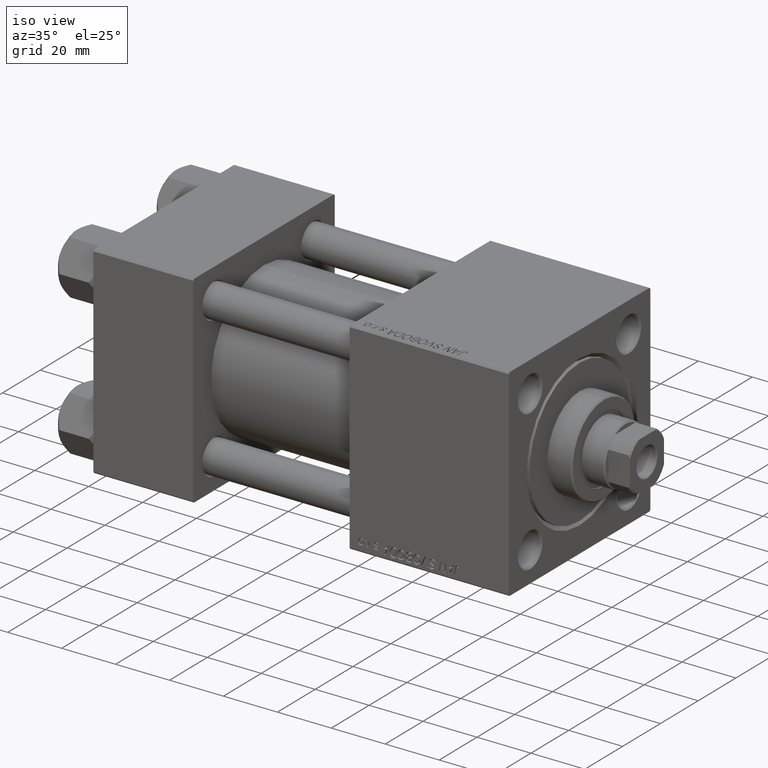
[diagram: clean part render]
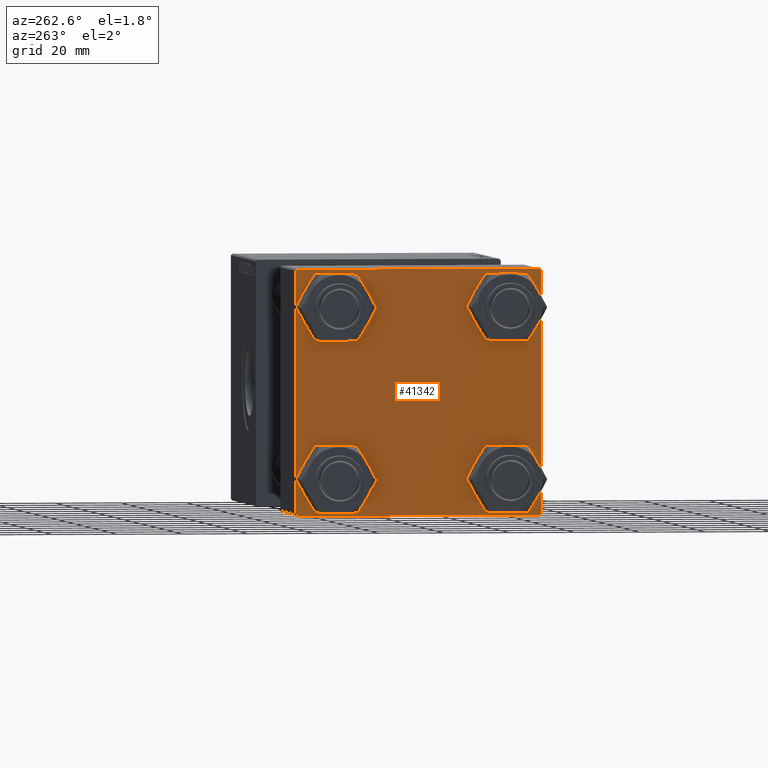
[diagram: tour spotlight — one face highlighted and labeled with its STEP entity id]
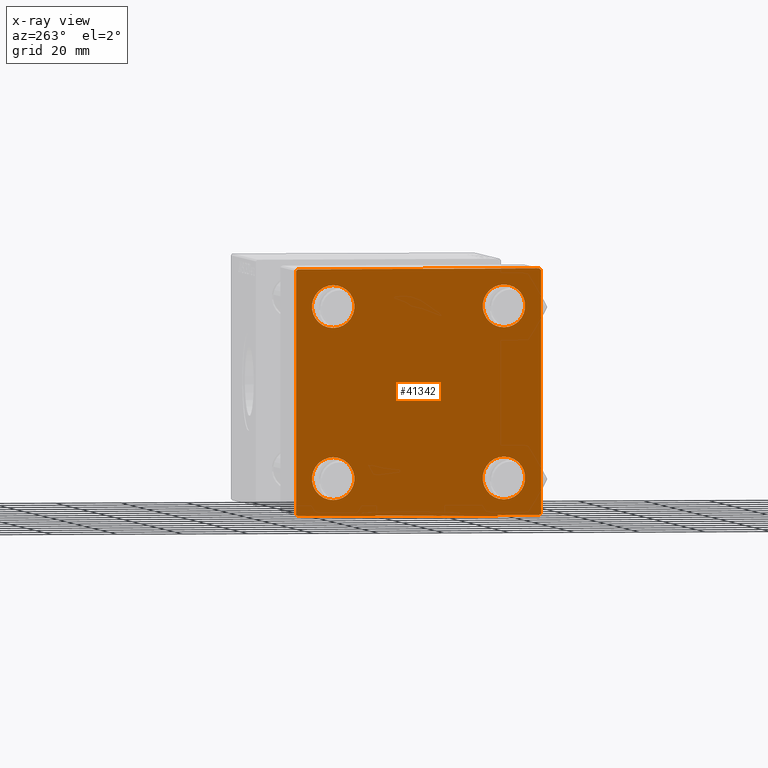
[diagram: x-ray of the same camera — body ghosted, this tour face saturated]
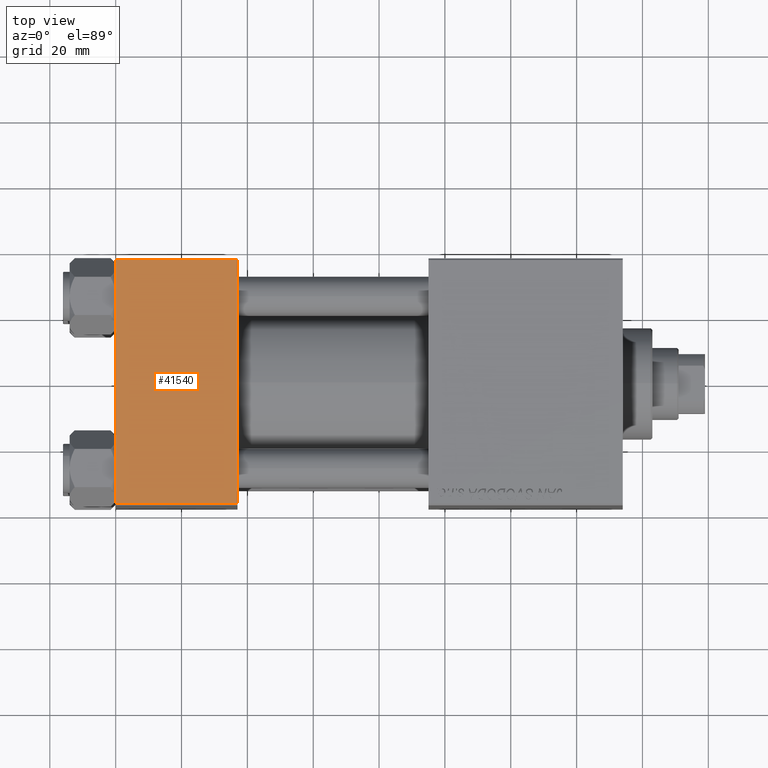
[diagram: tour spotlight — one face highlighted and labeled with its STEP entity id]
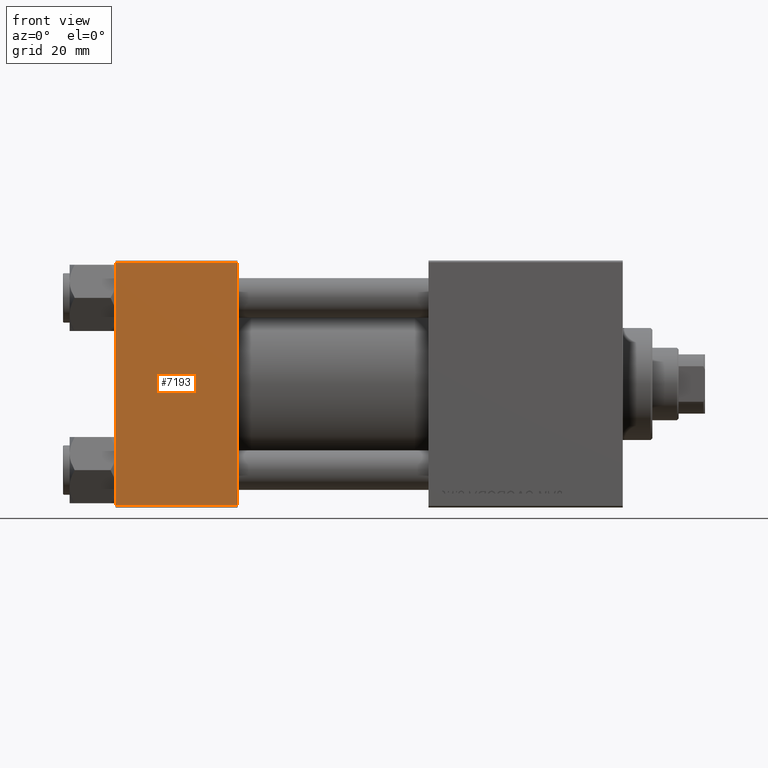
[diagram: tour spotlight — one face highlighted and labeled with its STEP entity id]
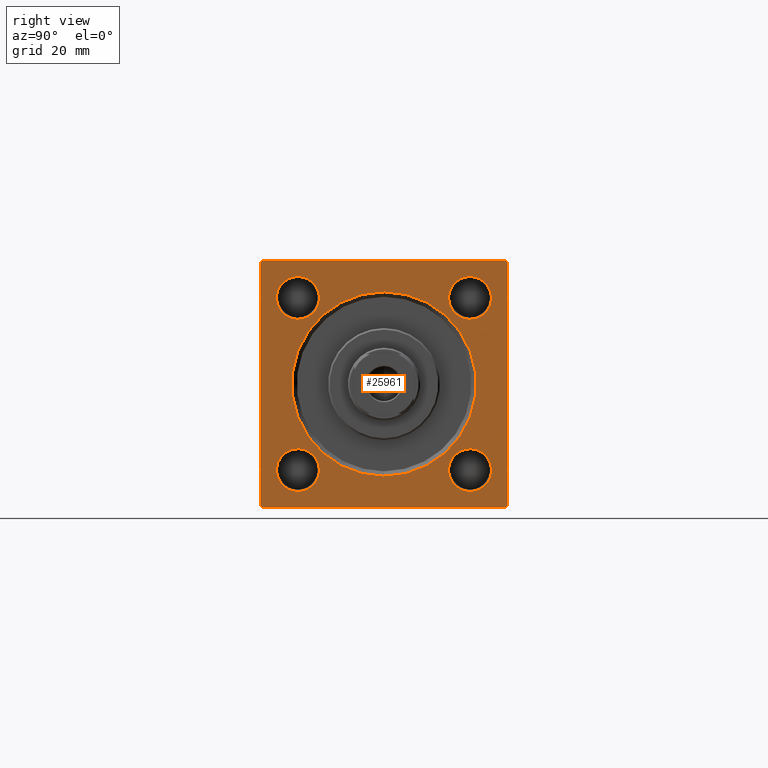
[diagram: tour spotlight — one face highlighted and labeled with its STEP entity id]
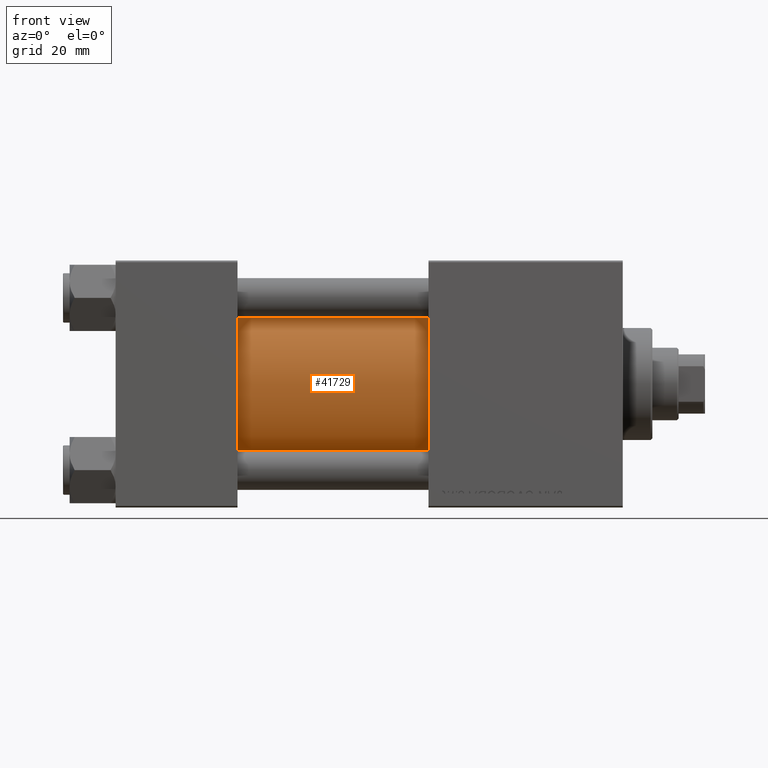
[diagram: tour spotlight — one face highlighted and labeled with its STEP entity id]
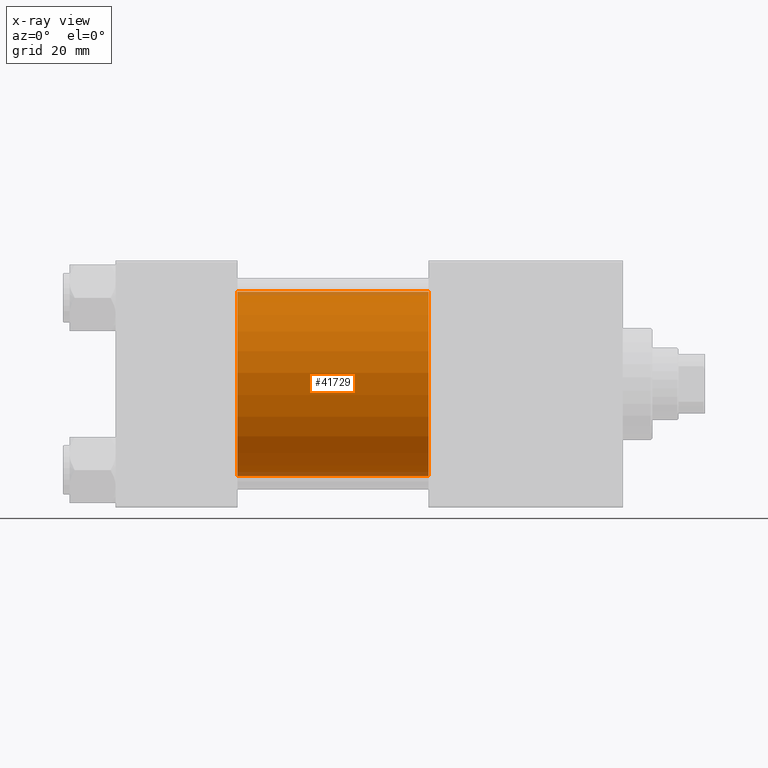
[diagram: x-ray of the same camera — body ghosted, this tour face saturated]
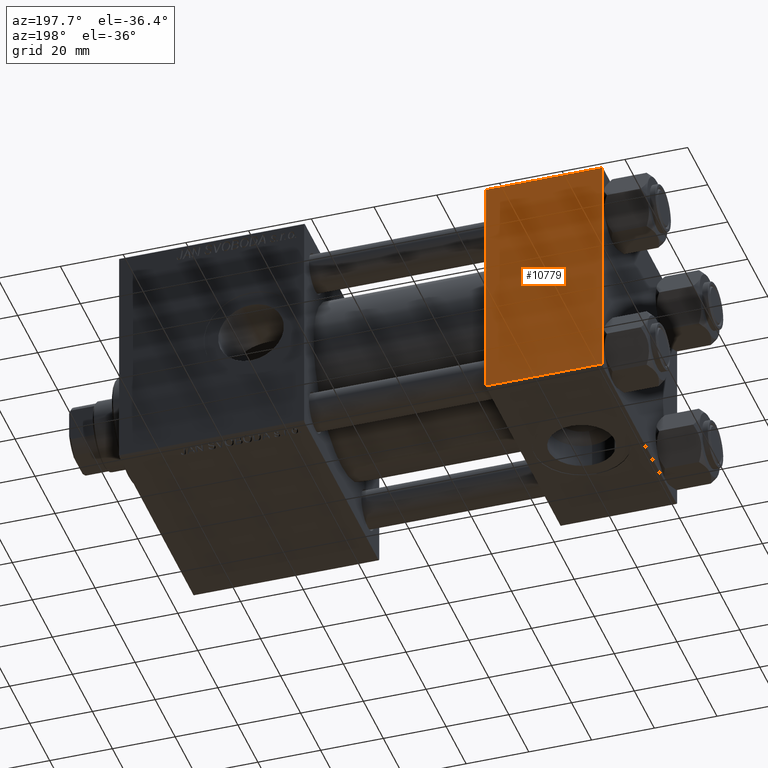
[diagram: tour spotlight — one face highlighted and labeled with its STEP entity id]
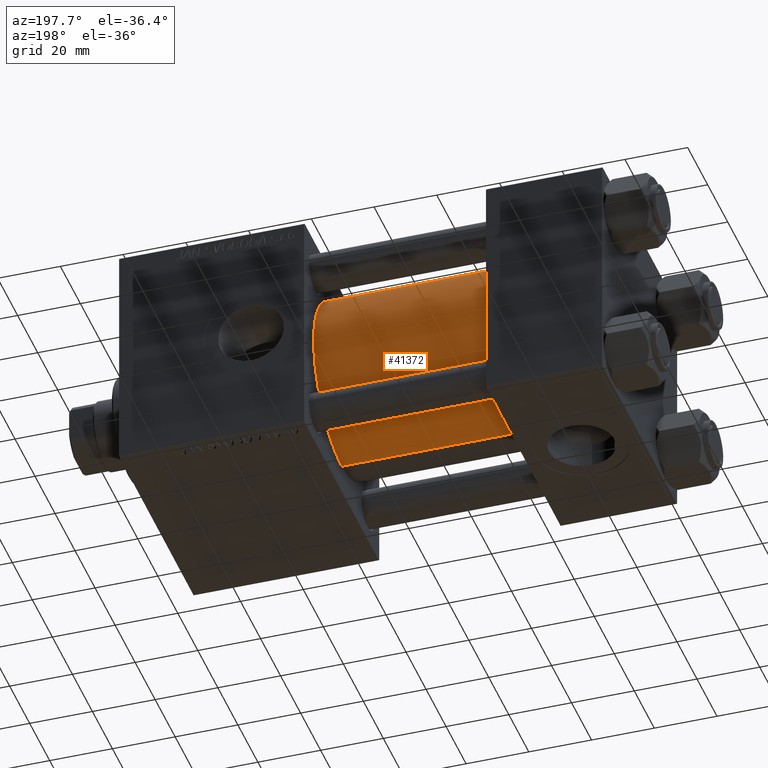
[diagram: tour spotlight — one face highlighted and labeled with its STEP entity id]
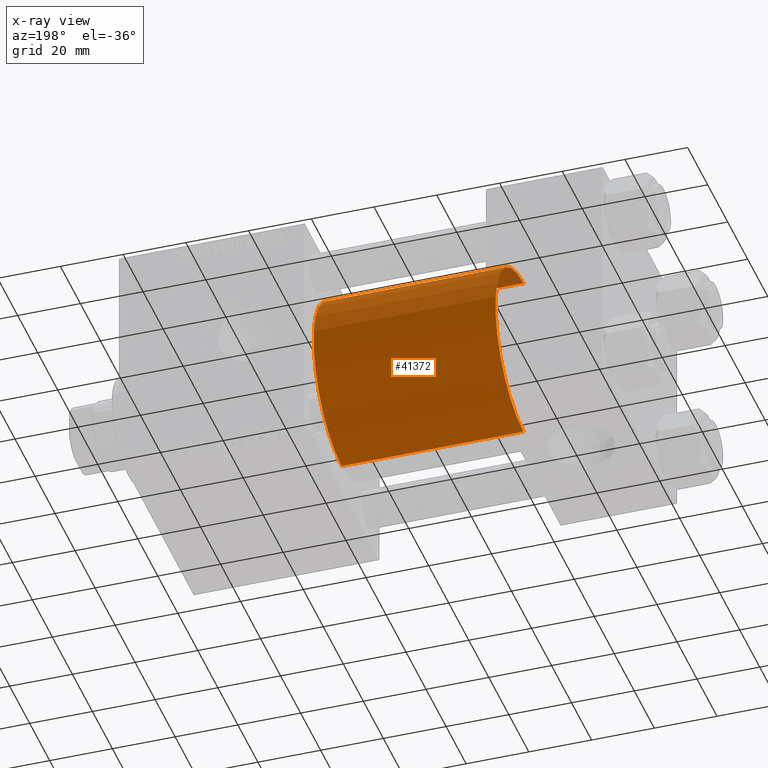
[diagram: x-ray of the same camera — body ghosted, this tour face saturated]
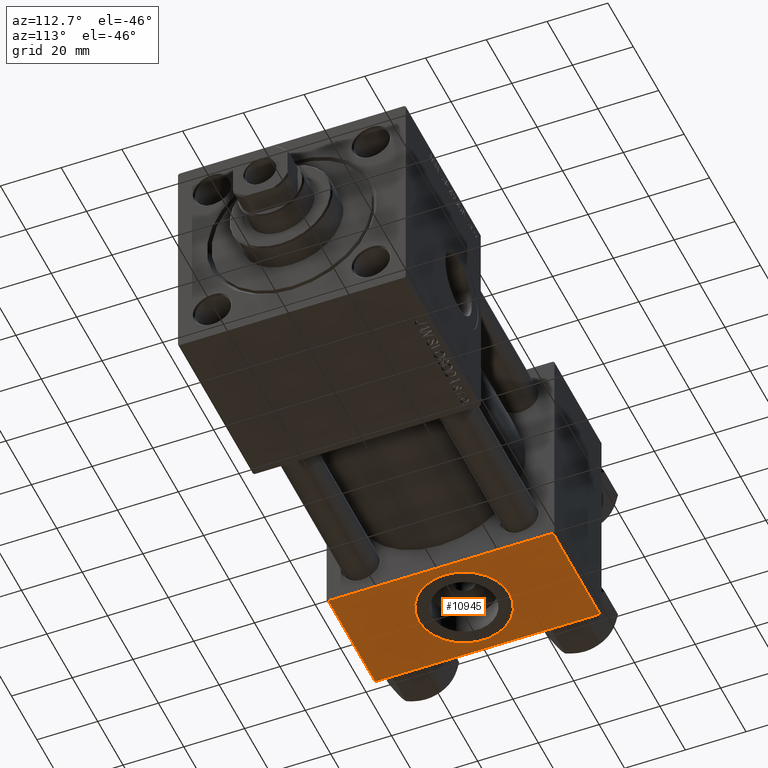
[diagram: tour spotlight — one face highlighted and labeled with its STEP entity id]
A machine part: a face-by-face anatomy tour. The part has 1148 B-rep faces; the first image is the clean iso view, then the 8 largest visible faces are spotlighted one at a time (largest first), each with its STEP entity span.

Face 1 — auxiliary view, entity #41342. An x-ray twin of the same camera follows (body ghosted, this face saturated) — the face is partly hidden behind the body. In plain terms, the highlighted planar face has unit normal (-1, 0, 0).
Definition (entity closure, byte-faithful):
#921 = CARTESIAN_POINT ( 'NONE',  ( 0.000000000000000000, -26.14999999999999147, 32.65000000000003411 ) ) ;
#1432 = EDGE_CURVE ( 'NONE', #22791, #24930, #30454, .T. ) ;
#1761 = CIRCLE ( 'NONE', #45562, 6.500000000000023093 ) ;
#2044 = CARTESIAN_POINT ( 'NONE',  ( 0.000000000000000000, 26.14999999999999858, -19.64999999999998792 ) ) ;
#2556 = VECTOR ( 'NONE', #30202, 1000.000000000000114 ) ;
#2610 = VERTEX_POINT ( 'NONE', #29831 ) ;
#2924 = EDGE_CURVE ( 'NONE', #3361, #42457, #1761, .T. ) ;
#3018 = DIRECTION ( 'NONE',  ( 0.000000000000000000, 0.000000000000000000, 1.000000000000000000 ) ) ;
#3145 = DIRECTION ( 'NONE',  ( 0.000000000000000000, 0.000000000000000000, 1.000000000000000000 ) ) ;
#3361 = VERTEX_POINT ( 'NONE', #921 ) ;
#3505 = VERTEX_POINT ( 'NONE', #10795 ) ;
#3654 = DIRECTION ( 'NONE',  ( 0.000000000000000000, -1.000000000000000000, -9.251858538542971581E-17 ) ) ;
#4343 = DIRECTION ( 'NONE',  ( -0.000000000000000000, 0.7071067811865474617, 0.7071067811865474617 ) ) ;
#4450 = LINE ( 'NONE', #28036, #20701 ) ;
#4985 = CIRCLE ( 'NONE', #39846, 6.500000000000023093 ) ;
#5728 = EDGE_CURVE ( 'NONE', #2610, #6748, #15098, .T. ) ;
#5970 = ORIENTED_EDGE ( 'NONE', *, *, #8244, .F. ) ;
#6050 = LINE ( 'NONE', #16971, #20908 ) ;
#6426 = EDGE_CURVE ( 'NONE', #12194, #37562, #14871, .T. ) ;
#6511 = DIRECTION ( 'NONE',  ( 0.000000000000000000, 0.000000000000000000, -1.000000000000000000 ) ) ;
#6748 = VERTEX_POINT ( 'NONE', #16330 ) ;
#6834 = DIRECTION ( 'NONE',  ( 1.000000000000000000, -0.000000000000000000, 0.000000000000000000 ) ) ;
#7350 = CARTESIAN_POINT ( 'NONE',  ( 0.000000000000000000, 37.49999999999999289, 37.00000000000000000 ) ) ;
#7855 = CARTESIAN_POINT ( 'NONE',  ( 0.000000000000000000, -26.14999999999999147, -26.15000000000000924 ) ) ;
#8130 = DIRECTION ( 'NONE',  ( 0.000000000000000000, -0.7071067811865524577, 0.7071067811865426878 ) ) ;
#8244 = EDGE_CURVE ( 'NONE', #22791, #46949, #35360, .T. ) ;
#8621 = VERTEX_POINT ( 'NONE', #2044 ) ;
#9031 = EDGE_LOOP ( 'NONE', ( #18995, #48804, #44654, #17877, #21074, #41964, #5970, #10227 ) ) ;
#9294 = FACE_BOUND ( 'NONE', #39301, .T. ) ;
#9879 = DIRECTION ( 'NONE',  ( 1.000000000000000000, -0.000000000000000000, 0.000000000000000000 ) ) ;
#9919 = CIRCLE ( 'NONE', #44779, 6.500000000000015987 ) ;
#10227 = ORIENTED_EDGE ( 'NONE', *, *, #1432, .T. ) ;
#10449 = DIRECTION ( 'NONE',  ( 0.000000000000000000, 0.000000000000000000, 1.000000000000000000 ) ) ;
#10747 = CARTESIAN_POINT ( 'NONE',  ( 0.000000000000000000, 26.14999999999999858, 26.15000000000000213 ) ) ;
#10795 = CARTESIAN_POINT ( 'NONE',  ( 0.000000000000000000, 26.14999999999999858, 32.65000000000002700 ) ) ;
#11367 = CARTESIAN_POINT ( 'NONE',  ( 0.000000000000000000, -26.14999999999999147, 26.15000000000000924 ) ) ;
#11487 = DIRECTION ( 'NONE',  ( 1.000000000000000000, -0.000000000000000000, 0.000000000000000000 ) ) ;
#11852 = DIRECTION ( 'NONE',  ( 1.000000000000000000, -0.000000000000000000, 0.000000000000000000 ) ) ;
#12182 = LINE ( 'NONE', #35292, #28179 ) ;
#12194 = VERTEX_POINT ( 'NONE', #14517 ) ;
#12665 = EDGE_LOOP ( 'NONE', ( #40391, #30807 ) ) ;
#13101 = FACE_BOUND ( 'NONE', #45903, .T. ) ;
#13857 = DIRECTION ( 'NONE',  ( -0.000000000000000000, 0.000000000000000000, 1.000000000000000000 ) ) ;
#14037 = AXIS2_PLACEMENT_3D ( 'NONE', #7855, #46682, #46191 ) ;
#14202 = EDGE_CURVE ( 'NONE', #3505, #40539, #49135, .T. ) ;
#14517 = CARTESIAN_POINT ( 'NONE',  ( 0.000000000000000000, -26.14999999999999147, -32.65000000000002700 ) ) ;
#14871 = CIRCLE ( 'NONE', #14037, 6.500000000000015987 ) ;
#15098 = LINE ( 'NONE', #45812, #22121 ) ;
#15450 = EDGE_CURVE ( 'NONE', #35191, #2610, #4450, .T. ) ;
#15451 = ORIENTED_EDGE ( 'NONE', *, *, #6426, .T. ) ;
#16120 = DIRECTION ( 'NONE',  ( -0.000000000000000000, -0.7071067811865474617, -0.7071067811865474617 ) ) ;
#16330 = CARTESIAN_POINT ( 'NONE',  ( 0.000000000000000000, -37.00000000000002132, -37.50000000000000711 ) ) ;
#16380 = ORIENTED_EDGE ( 'NONE', *, *, #27669, .T. ) ;
#16936 = EDGE_LOOP ( 'NONE', ( #47194, #15451 ) ) ;
#16971 = CARTESIAN_POINT ( 'NONE',  ( 0.000000000000000000, -37.50000000000000711, 37.49999999999999289 ) ) ;
#17877 = ORIENTED_EDGE ( 'NONE', *, *, #30848, .T. ) ;
#18995 = ORIENTED_EDGE ( 'NONE', *, *, #28997, .T. ) ;
#19085 = CARTESIAN_POINT ( 'NONE',  ( -0.000000000000000000, -37.25000000000000000, 37.25000000000000000 ) ) ;
#20701 = VECTOR ( 'NONE', #16120, 1000.000000000000114 ) ;
#20795 = CARTESIAN_POINT ( 'NONE',  ( 0.000000000000000000, 36.99999999999999289, 37.50000000000000000 ) ) ;
#20908 = VECTOR ( 'NONE', #21533, 1000.000000000000000 ) ;
#21074 = ORIENTED_EDGE ( 'NONE', *, *, #21933, .F. ) ;
#21237 = CARTESIAN_POINT ( 'NONE',  ( 0.000000000000000000, 37.49999999999999289, 37.50000000000000000 ) ) ;
#21533 = DIRECTION ( 'NONE',  ( 0.000000000000000000, 9.251858538542971581E-17, -1.000000000000000000 ) ) ;
#21627 = CARTESIAN_POINT ( 'NONE',  ( 0.000000000000000000, 26.14999999999999858, -26.15000000000000213 ) ) ;
#21933 = EDGE_CURVE ( 'NONE', #41314, #47963, #6050, .T. ) ;
#22121 = VECTOR ( 'NONE', #30576, 1000.000000000000000 ) ;
#22733 = VECTOR ( 'NONE', #4343, 1000.000000000000114 ) ;
#22791 = VERTEX_POINT ( 'NONE', #20795 ) ;
#23228 = CIRCLE ( 'NONE', #49963, 6.500000000000015987 ) ;
#24930 = VERTEX_POINT ( 'NONE', #7350 ) ;
#25520 = EDGE_CURVE ( 'NONE', #41314, #46949, #30507, .T. ) ;
#25522 = FACE_OUTER_BOUND ( 'NONE', #9031, .T. ) ;
#25603 = CARTESIAN_POINT ( 'NONE',  ( 0.000000000000000000, -26.14999999999999147, -26.15000000000000924 ) ) ;
#25853 = CARTESIAN_POINT ( 'NONE',  ( 0.000000000000000000, 26.14999999999999858, 26.15000000000000213 ) ) ;
#25955 = CARTESIAN_POINT ( 'NONE',  ( 0.000000000000000000, 26.14999999999999858, 19.64999999999998437 ) ) ;
#25969 = AXIS2_PLACEMENT_3D ( 'NONE', #45574, #29334, #13857 ) ;
#26636 = CARTESIAN_POINT ( 'NONE',  ( 0.000000000000000000, 37.24999999999999289, 37.24999999999999289 ) ) ;
#26832 = DIRECTION ( 'NONE',  ( 0.000000000000000000, 0.000000000000000000, 1.000000000000000000 ) ) ;
#27669 = EDGE_CURVE ( 'NONE', #49546, #8621, #23228, .T. ) ;
#28036 = CARTESIAN_POINT ( 'NONE',  ( 0.000000000000000000, 37.24999999999998579, -37.24999999999998579 ) ) ;
#28179 = VECTOR ( 'NONE', #8130, 1000.000000000000000 ) ;
#28356 = EDGE_CURVE ( 'NONE', #8621, #49546, #41932, .T. ) ;
#28997 = EDGE_CURVE ( 'NONE', #24930, #35191, #40528, .T. ) ;
#29334 = DIRECTION ( 'NONE',  ( -1.000000000000000000, 0.000000000000000000, -0.000000000000000000 ) ) ;
#29561 = DIRECTION ( 'NONE',  ( 1.000000000000000000, -0.000000000000000000, 0.000000000000000000 ) ) ;
#29742 = DIRECTION ( 'NONE',  ( 1.000000000000000000, -0.000000000000000000, 0.000000000000000000 ) ) ;
#29831 = CARTESIAN_POINT ( 'NONE',  ( 0.000000000000000000, 36.99999999999997868, -37.50000000000000000 ) ) ;
#29878 = ORIENTED_EDGE ( 'NONE', *, *, #34592, .T. ) ;
#30202 = DIRECTION ( 'NONE',  ( 0.000000000000000000, 0.7071067811865474617, -0.7071067811865474617 ) ) ;
#30314 = ORIENTED_EDGE ( 'NONE', *, *, #14202, .T. ) ;
#30454 = LINE ( 'NONE', #26636, #2556 ) ;
#30507 = LINE ( 'NONE', #19085, #22733 ) ;
#30576 = DIRECTION ( 'NONE',  ( 0.000000000000000000, -1.000000000000000000, -9.251858538542972814E-17 ) ) ;
#30807 = ORIENTED_EDGE ( 'NONE', *, *, #43486, .T. ) ;
#30848 = EDGE_CURVE ( 'NONE', #6748, #47963, #12182, .T. ) ;
#31054 = CARTESIAN_POINT ( 'NONE',  ( 0.000000000000000000, 37.49999999999999289, 37.50000000000000000 ) ) ;
#31126 = VECTOR ( 'NONE', #3654, 1000.000000000000000 ) ;
#31256 = CARTESIAN_POINT ( 'NONE',  ( 0.000000000000000000, 26.14999999999999858, -32.65000000000001990 ) ) ;
#32397 = FACE_BOUND ( 'NONE', #16936, .T. ) ;
#32947 = AXIS2_PLACEMENT_3D ( 'NONE', #25853, #6834, #3018 ) ;
#33510 = CARTESIAN_POINT ( 'NONE',  ( 0.000000000000000000, -26.14999999999999147, -19.64999999999999503 ) ) ;
#33633 = CARTESIAN_POINT ( 'NONE',  ( 0.000000000000000000, 26.14999999999999858, -26.15000000000000213 ) ) ;
#34116 = DIRECTION ( 'NONE',  ( 1.000000000000000000, -0.000000000000000000, 0.000000000000000000 ) ) ;
#34592 = EDGE_CURVE ( 'NONE', #40539, #3505, #49385, .T. ) ;
#35191 = VERTEX_POINT ( 'NONE', #38966 ) ;
#35292 = CARTESIAN_POINT ( 'NONE',  ( 0.000000000000000000, -37.24999999999975842, -37.25000000000027001 ) ) ;
#35360 = LINE ( 'NONE', #31054, #31126 ) ;
#35902 = CARTESIAN_POINT ( 'NONE',  ( 0.000000000000000000, -37.00000000000000711, 37.49999999999999289 ) ) ;
#36213 = FACE_BOUND ( 'NONE', #12665, .T. ) ;
#37423 = DIRECTION ( 'NONE',  ( 0.000000000000000000, 0.000000000000000000, 1.000000000000000000 ) ) ;
#37562 = VERTEX_POINT ( 'NONE', #33510 ) ;
#38966 = CARTESIAN_POINT ( 'NONE',  ( 0.000000000000000000, 37.49999999999999289, -36.99999999999998579 ) ) ;
#39301 = EDGE_LOOP ( 'NONE', ( #30314, #29878 ) ) ;
#39846 = AXIS2_PLACEMENT_3D ( 'NONE', #11367, #11852, #26832 ) ;
#40391 = ORIENTED_EDGE ( 'NONE', *, *, #2924, .T. ) ;
#40528 = LINE ( 'NONE', #21237, #45158 ) ;
#40539 = VERTEX_POINT ( 'NONE', #25955 ) ;
#40838 = CARTESIAN_POINT ( 'NONE',  ( 0.000000000000000000, -26.14999999999999147, 19.64999999999999147 ) ) ;
#41314 = VERTEX_POINT ( 'NONE', #43816 ) ;
#41342 = ADVANCED_FACE ( 'NONE', ( #36213, #32397, #13101, #9294, #25522 ), #48633, .T. ) ;
#41932 = CIRCLE ( 'NONE', #42719, 6.500000000000015987 ) ;
#41964 = ORIENTED_EDGE ( 'NONE', *, *, #25520, .T. ) ;
#42457 = VERTEX_POINT ( 'NONE', #40838 ) ;
#42719 = AXIS2_PLACEMENT_3D ( 'NONE', #33633, #29561, #37423 ) ;
#43486 = EDGE_CURVE ( 'NONE', #42457, #3361, #4985, .T. ) ;
#43816 = CARTESIAN_POINT ( 'NONE',  ( 0.000000000000000000, -37.50000000000000711, 36.99999999999999289 ) ) ;
#44654 = ORIENTED_EDGE ( 'NONE', *, *, #5728, .T. ) ;
#44779 = AXIS2_PLACEMENT_3D ( 'NONE', #25603, #9879, #47959 ) ;
#45158 = VECTOR ( 'NONE', #6511, 1000.000000000000000 ) ;
#45350 = EDGE_CURVE ( 'NONE', #37562, #12194, #9919, .T. ) ;
#45562 = AXIS2_PLACEMENT_3D ( 'NONE', #46263, #11487, #49555 ) ;
#45574 = CARTESIAN_POINT ( 'NONE',  ( 0.000000000000000000, 0.000000000000000000, 0.000000000000000000 ) ) ;
#45812 = CARTESIAN_POINT ( 'NONE',  ( 0.000000000000000000, 37.49999999999999289, -37.50000000000000000 ) ) ;
#45903 = EDGE_LOOP ( 'NONE', ( #47941, #16380 ) ) ;
#46172 = AXIS2_PLACEMENT_3D ( 'NONE', #10747, #34116, #3145 ) ;
#46191 = DIRECTION ( 'NONE',  ( 0.000000000000000000, 0.000000000000000000, 1.000000000000000000 ) ) ;
#46263 = CARTESIAN_POINT ( 'NONE',  ( 0.000000000000000000, -26.14999999999999147, 26.15000000000000924 ) ) ;
#46682 = DIRECTION ( 'NONE',  ( 1.000000000000000000, -0.000000000000000000, 0.000000000000000000 ) ) ;
#46949 = VERTEX_POINT ( 'NONE', #35902 ) ;
#47194 = ORIENTED_EDGE ( 'NONE', *, *, #45350, .T. ) ;
#47941 = ORIENTED_EDGE ( 'NONE', *, *, #28356, .T. ) ;
#47959 = DIRECTION ( 'NONE',  ( 0.000000000000000000, 0.000000000000000000, 1.000000000000000000 ) ) ;
#47963 = VERTEX_POINT ( 'NONE', #49572 ) ;
#48633 = PLANE ( 'NONE',  #25969 ) ;
#48804 = ORIENTED_EDGE ( 'NONE', *, *, #15450, .T. ) ;
#49135 = CIRCLE ( 'NONE', #32947, 6.500000000000023093 ) ;
#49385 = CIRCLE ( 'NONE', #46172, 6.500000000000023093 ) ;
#49546 = VERTEX_POINT ( 'NONE', #31256 ) ;
#49555 = DIRECTION ( 'NONE',  ( 0.000000000000000000, 0.000000000000000000, 1.000000000000000000 ) ) ;
#49572 = CARTESIAN_POINT ( 'NONE',  ( 0.000000000000000000, -37.50000000000000000, -37.00000000000003553 ) ) ;
#49963 = AXIS2_PLACEMENT_3D ( 'NONE', #21627, #29742, #10449 ) ;

Face 2 — top view, entity #41540. In plain terms, the highlighted planar face has unit normal (0, 0, -1).
Definition (entity closure, byte-faithful):
#862 = CARTESIAN_POINT ( 'NONE',  ( 37.00000000000000000, 37.49999999999999289, 37.50000000000000000 ) ) ;
#1886 = LINE ( 'NONE', #44015, #5724 ) ;
#1901 = CARTESIAN_POINT ( 'NONE',  ( 37.00000000000000000, 37.49999999999999289, 37.50000000000000000 ) ) ;
#2734 = CARTESIAN_POINT ( 'NONE',  ( 0.000000000000000000, 36.99999999999999289, 37.50000000000000000 ) ) ;
#3654 = DIRECTION ( 'NONE',  ( 0.000000000000000000, -1.000000000000000000, -9.251858538542971581E-17 ) ) ;
#5410 = EDGE_CURVE ( 'NONE', #20688, #22791, #12956, .T. ) ;
#5724 = VECTOR ( 'NONE', #16337, 1000.000000000000000 ) ;
#8244 = EDGE_CURVE ( 'NONE', #22791, #46949, #35360, .T. ) ;
#9061 = EDGE_LOOP ( 'NONE', ( #34867, #27892, #39429, #12434 ) ) ;
#12434 = ORIENTED_EDGE ( 'NONE', *, *, #5410, .T. ) ;
#12956 = LINE ( 'NONE', #2734, #48055 ) ;
#16337 = DIRECTION ( 'NONE',  ( 1.000000000000000000, 0.000000000000000000, 0.000000000000000000 ) ) ;
#17370 = DIRECTION ( 'NONE',  ( 0.000000000000000000, -1.000000000000000000, -9.251858538542971581E-17 ) ) ;
#18314 = VECTOR ( 'NONE', #17370, 1000.000000000000000 ) ;
#20153 = DIRECTION ( 'NONE',  ( 0.000000000000000000, 1.000000000000000000, 9.251858538542971581E-17 ) ) ;
#20688 = VERTEX_POINT ( 'NONE', #35480 ) ;
#20795 = CARTESIAN_POINT ( 'NONE',  ( 0.000000000000000000, 36.99999999999999289, 37.50000000000000000 ) ) ;
#22791 = VERTEX_POINT ( 'NONE', #20795 ) ;
#24066 = CARTESIAN_POINT ( 'NONE',  ( 37.00000000000000000, -37.00000000000000711, 37.49999999999999289 ) ) ;
#24719 = FACE_OUTER_BOUND ( 'NONE', #9061, .T. ) ;
#26664 = EDGE_CURVE ( 'NONE', #20688, #38641, #36661, .T. ) ;
#27892 = ORIENTED_EDGE ( 'NONE', *, *, #41572, .T. ) ;
#28520 = PLANE ( 'NONE',  #30030 ) ;
#29629 = DIRECTION ( 'NONE',  ( -1.000000000000000000, 0.000000000000000000, 0.000000000000000000 ) ) ;
#30030 = AXIS2_PLACEMENT_3D ( 'NONE', #862, #44263, #20153 ) ;
#31054 = CARTESIAN_POINT ( 'NONE',  ( 0.000000000000000000, 37.49999999999999289, 37.50000000000000000 ) ) ;
#31126 = VECTOR ( 'NONE', #3654, 1000.000000000000000 ) ;
#34867 = ORIENTED_EDGE ( 'NONE', *, *, #8244, .T. ) ;
#35360 = LINE ( 'NONE', #31054, #31126 ) ;
#35480 = CARTESIAN_POINT ( 'NONE',  ( 37.00000000000000000, 36.99999999999999289, 37.50000000000000000 ) ) ;
#35902 = CARTESIAN_POINT ( 'NONE',  ( 0.000000000000000000, -37.00000000000000711, 37.49999999999999289 ) ) ;
#36661 = LINE ( 'NONE', #1901, #18314 ) ;
#38641 = VERTEX_POINT ( 'NONE', #24066 ) ;
#39429 = ORIENTED_EDGE ( 'NONE', *, *, #26664, .F. ) ;
#41540 = ADVANCED_FACE ( 'NONE', ( #24719 ), #28520, .F. ) ;
#41572 = EDGE_CURVE ( 'NONE', #46949, #38641, #1886, .T. ) ;
#44015 = CARTESIAN_POINT ( 'NONE',  ( 37.00000000000000000, -37.00000000000000711, 37.49999999999999289 ) ) ;
#44263 = DIRECTION ( 'NONE',  ( 0.000000000000000000, 9.251858538542971581E-17, -1.000000000000000000 ) ) ;
#46949 = VERTEX_POINT ( 'NONE', #35902 ) ;
#48055 = VECTOR ( 'NONE', #29629, 1000.000000000000000 ) ;

Face 3 — front view, entity #7193. In plain terms, the highlighted planar face has unit normal (0, 1, 0).
Definition (entity closure, byte-faithful):
#3257 = VERTEX_POINT ( 'NONE', #34716 ) ;
#5982 = EDGE_CURVE ( 'NONE', #17409, #41314, #49055, .T. ) ;
#6050 = LINE ( 'NONE', #16971, #20908 ) ;
#7193 = ADVANCED_FACE ( 'NONE', ( #33275 ), #9665, .F. ) ;
#7936 = VECTOR ( 'NONE', #40013, 1000.000000000000000 ) ;
#8114 = EDGE_LOOP ( 'NONE', ( #23994, #38220, #37409, #46564 ) ) ;
#9039 = CARTESIAN_POINT ( 'NONE',  ( 37.00000000000000000, -37.50000000000000711, 37.49999999999999289 ) ) ;
#9665 = PLANE ( 'NONE',  #34338 ) ;
#13226 = CARTESIAN_POINT ( 'NONE',  ( 37.00000000000000000, -37.50000000000000711, 37.49999999999999289 ) ) ;
#13499 = CARTESIAN_POINT ( 'NONE',  ( 37.00000000000000000, -37.50000000000000000, -37.00000000000003553 ) ) ;
#16389 = VECTOR ( 'NONE', #44466, 1000.000000000000000 ) ;
#16971 = CARTESIAN_POINT ( 'NONE',  ( 0.000000000000000000, -37.50000000000000711, 37.49999999999999289 ) ) ;
#17409 = VERTEX_POINT ( 'NONE', #36771 ) ;
#20908 = VECTOR ( 'NONE', #21533, 1000.000000000000000 ) ;
#21533 = DIRECTION ( 'NONE',  ( 0.000000000000000000, 9.251858538542971581E-17, -1.000000000000000000 ) ) ;
#21933 = EDGE_CURVE ( 'NONE', #41314, #47963, #6050, .T. ) ;
#22181 = EDGE_CURVE ( 'NONE', #17409, #3257, #43819, .T. ) ;
#22643 = CARTESIAN_POINT ( 'NONE',  ( 37.00000000000000000, -37.50000000000000711, 36.99999999999999289 ) ) ;
#23994 = ORIENTED_EDGE ( 'NONE', *, *, #21933, .T. ) ;
#30264 = DIRECTION ( 'NONE',  ( -1.000000000000000000, 0.000000000000000000, 0.000000000000000000 ) ) ;
#32796 = LINE ( 'NONE', #13499, #16389 ) ;
#33275 = FACE_OUTER_BOUND ( 'NONE', #8114, .T. ) ;
#34338 = AXIS2_PLACEMENT_3D ( 'NONE', #13226, #37076, #41140 ) ;
#34716 = CARTESIAN_POINT ( 'NONE',  ( 37.00000000000000000, -37.50000000000000000, -37.00000000000003553 ) ) ;
#36771 = CARTESIAN_POINT ( 'NONE',  ( 37.00000000000000000, -37.50000000000000711, 36.99999999999999289 ) ) ;
#37076 = DIRECTION ( 'NONE',  ( -0.000000000000000000, 1.000000000000000000, 9.251858538542971581E-17 ) ) ;
#37409 = ORIENTED_EDGE ( 'NONE', *, *, #22181, .F. ) ;
#38220 = ORIENTED_EDGE ( 'NONE', *, *, #45066, .T. ) ;
#40013 = DIRECTION ( 'NONE',  ( 0.000000000000000000, 9.251858538542971581E-17, -1.000000000000000000 ) ) ;
#41140 = DIRECTION ( 'NONE',  ( 0.000000000000000000, -9.251858538542971581E-17, 1.000000000000000000 ) ) ;
#41314 = VERTEX_POINT ( 'NONE', #43816 ) ;
#43816 = CARTESIAN_POINT ( 'NONE',  ( 0.000000000000000000, -37.50000000000000711, 36.99999999999999289 ) ) ;
#43819 = LINE ( 'NONE', #9039, #7936 ) ;
#44466 = DIRECTION ( 'NONE',  ( 1.000000000000000000, 0.000000000000000000, 0.000000000000000000 ) ) ;
#44835 = VECTOR ( 'NONE', #30264, 1000.000000000000000 ) ;
#45066 = EDGE_CURVE ( 'NONE', #47963, #3257, #32796, .T. ) ;
#46564 = ORIENTED_EDGE ( 'NONE', *, *, #5982, .T. ) ;
#47963 = VERTEX_POINT ( 'NONE', #49572 ) ;
#49055 = LINE ( 'NONE', #22643, #44835 ) ;
#49572 = CARTESIAN_POINT ( 'NONE',  ( 0.000000000000000000, -37.50000000000000000, -37.00000000000003553 ) ) ;

Face 4 — right view, entity #25961. In plain terms, the highlighted planar face has unit normal (-1, 0, 0).
Definition (entity closure, byte-faithful):
#338 = VERTEX_POINT ( 'NONE', #36995 ) ;
#470 = EDGE_LOOP ( 'NONE', ( #2417, #14829, #48722, #22625, #44084, #14443, #8304, #49140 ) ) ;
#869 = CARTESIAN_POINT ( 'NONE',  ( 154.0000000000000000, 26.14999999999999858, 26.15000000000000213 ) ) ;
#1106 = CARTESIAN_POINT ( 'NONE',  ( 154.0000000000000000, 26.14999999999999858, -26.15000000000000213 ) ) ;
#1161 = DIRECTION ( 'NONE',  ( 0.000000000000000000, 0.000000000000000000, 1.000000000000000000 ) ) ;
#1226 = EDGE_LOOP ( 'NONE', ( #40668, #23205 ) ) ;
#2417 = ORIENTED_EDGE ( 'NONE', *, *, #46182, .T. ) ;
#2483 = EDGE_CURVE ( 'NONE', #13512, #14402, #6648, .T. ) ;
#2825 = CARTESIAN_POINT ( 'NONE',  ( 154.0000000000000000, -36.99999999999998579, -37.50000000000000000 ) ) ;
#3058 = ORIENTED_EDGE ( 'NONE', *, *, #21073, .T. ) ;
#3235 = FACE_BOUND ( 'NONE', #1226, .T. ) ;
#3362 = CARTESIAN_POINT ( 'NONE',  ( 154.0000000000000000, 26.14999999999999858, 32.65000000000001279 ) ) ;
#3773 = AXIS2_PLACEMENT_3D ( 'NONE', #44848, #10070, #25546 ) ;
#4091 = EDGE_CURVE ( 'NONE', #19324, #21851, #15245, .T. ) ;
#4140 = VERTEX_POINT ( 'NONE', #2825 ) ;
#4663 = VECTOR ( 'NONE', #40051, 999.9999999999998863 ) ;
#4666 = CIRCLE ( 'NONE', #50035, 6.500000000000002665 ) ;
#4829 = VERTEX_POINT ( 'NONE', #16129 ) ;
#5160 = DIRECTION ( 'NONE',  ( 0.000000000000000000, -1.000000000000000000, 0.000000000000000000 ) ) ;
#5971 = CARTESIAN_POINT ( 'NONE',  ( 154.0000000000000000, -26.15000000000000213, -26.15000000000000213 ) ) ;
#6219 = DIRECTION ( 'NONE',  ( 0.000000000000000000, 0.000000000000000000, 1.000000000000000000 ) ) ;
#6247 = DIRECTION ( 'NONE',  ( 0.000000000000000000, 0.000000000000000000, 1.000000000000000000 ) ) ;
#6648 = CIRCLE ( 'NONE', #38236, 27.99999999999999645 ) ;
#6678 = DIRECTION ( 'NONE',  ( -1.000000000000000000, -0.000000000000000000, 0.000000000000000000 ) ) ;
#6872 = CARTESIAN_POINT ( 'NONE',  ( 154.0000000000000000, 37.50000000000000000, -36.99999999999999289 ) ) ;
#7041 = AXIS2_PLACEMENT_3D ( 'NONE', #869, #19662, #15603 ) ;
#7620 = DIRECTION ( 'NONE',  ( 0.000000000000000000, -9.251858538542972814E-17, -1.000000000000000000 ) ) ;
#7707 = DIRECTION ( 'NONE',  ( 0.000000000000000000, 0.000000000000000000, 1.000000000000000000 ) ) ;
#7910 = EDGE_LOOP ( 'NONE', ( #20187, #25235 ) ) ;
#8304 = ORIENTED_EDGE ( 'NONE', *, *, #19610, .T. ) ;
#8618 = CARTESIAN_POINT ( 'NONE',  ( 154.0000000000000000, 37.50000000000000000, 37.49999999999999289 ) ) ;
#8893 = VERTEX_POINT ( 'NONE', #49598 ) ;
#9237 = DIRECTION ( 'NONE',  ( 0.000000000000000000, -0.7071067811865474617, 0.7071067811865474617 ) ) ;
#9686 = EDGE_LOOP ( 'NONE', ( #42890, #3058 ) ) ;
#10070 = DIRECTION ( 'NONE',  ( -1.000000000000000000, -0.000000000000000000, 0.000000000000000000 ) ) ;
#10183 = AXIS2_PLACEMENT_3D ( 'NONE', #13837, #29311, #14088 ) ;
#10221 = DIRECTION ( 'NONE',  ( 0.000000000000000000, 0.000000000000000000, 1.000000000000000000 ) ) ;
#10656 = CARTESIAN_POINT ( 'NONE',  ( 154.0000000000000000, -26.14999999999999147, 19.64999999999999503 ) ) ;
#10794 = DIRECTION ( 'NONE',  ( -1.000000000000000000, -0.000000000000000000, 0.000000000000000000 ) ) ;
#10843 = FACE_OUTER_BOUND ( 'NONE', #470, .T. ) ;
#11004 = DIRECTION ( 'NONE',  ( -1.000000000000000000, -0.000000000000000000, 0.000000000000000000 ) ) ;
#11200 = CIRCLE ( 'NONE', #24958, 6.499999999999974243 ) ;
#11320 = CARTESIAN_POINT ( 'NONE',  ( 154.0000000000000000, 37.50000000000000000, 36.99999999999999289 ) ) ;
#11683 = LINE ( 'NONE', #39573, #39634 ) ;
#12015 = LINE ( 'NONE', #39931, #37208 ) ;
#12327 = CARTESIAN_POINT ( 'NONE',  ( 154.0000000000000000, 0.000000000000000000, 0.000000000000000000 ) ) ;
#12629 = EDGE_CURVE ( 'NONE', #49717, #23111, #25612, .T. ) ;
#12702 = CARTESIAN_POINT ( 'NONE',  ( 154.0000000000000000, -37.50000000000000711, -37.00000000000000711 ) ) ;
#13512 = VERTEX_POINT ( 'NONE', #18235 ) ;
#13589 = AXIS2_PLACEMENT_3D ( 'NONE', #5971, #20446, #1161 ) ;
#13837 = CARTESIAN_POINT ( 'NONE',  ( 154.0000000000000000, -26.14999999999999147, 26.14999999999999503 ) ) ;
#13992 = CARTESIAN_POINT ( 'NONE',  ( 154.0000000000000000, 37.00000000000000000, -37.50000000000000000 ) ) ;
#14010 = CARTESIAN_POINT ( 'NONE',  ( 154.0000000000000000, -37.50000000000000000, 36.99999999999995026 ) ) ;
#14088 = DIRECTION ( 'NONE',  ( 0.000000000000000000, 0.000000000000000000, 1.000000000000000000 ) ) ;
#14402 = VERTEX_POINT ( 'NONE', #31399 ) ;
#14443 = ORIENTED_EDGE ( 'NONE', *, *, #41576, .T. ) ;
#14742 = DIRECTION ( 'NONE',  ( 0.000000000000000000, 0.000000000000000000, -1.000000000000000000 ) ) ;
#14829 = ORIENTED_EDGE ( 'NONE', *, *, #33689, .T. ) ;
#15245 = LINE ( 'NONE', #41401, #36648 ) ;
#15603 = DIRECTION ( 'NONE',  ( 0.000000000000000000, 0.000000000000000000, 1.000000000000000000 ) ) ;
#15907 = EDGE_CURVE ( 'NONE', #16000, #42723, #36132, .T. ) ;
#16000 = VERTEX_POINT ( 'NONE', #34838 ) ;
#16084 = VERTEX_POINT ( 'NONE', #3362 ) ;
#16129 = CARTESIAN_POINT ( 'NONE',  ( 154.0000000000000000, -36.99999999999997158, 37.49999999999997868 ) ) ;
#16781 = DIRECTION ( 'NONE',  ( -1.000000000000000000, -0.000000000000000000, 0.000000000000000000 ) ) ;
#17577 = CIRCLE ( 'NONE', #7041, 6.500000000000008882 ) ;
#18039 = EDGE_CURVE ( 'NONE', #16084, #338, #17577, .T. ) ;
#18235 = CARTESIAN_POINT ( 'NONE',  ( 154.0000000000000000, 3.429011037612588881E-15, 27.99999999999999645 ) ) ;
#18880 = CARTESIAN_POINT ( 'NONE',  ( 154.0000000000000000, -26.14999999999999147, 26.14999999999999503 ) ) ;
#19324 = VERTEX_POINT ( 'NONE', #11320 ) ;
#19610 = EDGE_CURVE ( 'NONE', #8893, #4829, #34807, .T. ) ;
#19662 = DIRECTION ( 'NONE',  ( -1.000000000000000000, -0.000000000000000000, 0.000000000000000000 ) ) ;
#19959 = CARTESIAN_POINT ( 'NONE',  ( 154.0000000000000000, -26.15000000000000213, -32.64999999999998437 ) ) ;
#20151 = CARTESIAN_POINT ( 'NONE',  ( 154.0000000000000000, 26.14999999999999858, -32.64999999999998437 ) ) ;
#20187 = ORIENTED_EDGE ( 'NONE', *, *, #27127, .T. ) ;
#20446 = DIRECTION ( 'NONE',  ( -1.000000000000000000, -0.000000000000000000, 0.000000000000000000 ) ) ;
#20790 = EDGE_CURVE ( 'NONE', #44210, #21851, #32435, .T. ) ;
#20871 = CIRCLE ( 'NONE', #27342, 6.499999999999974243 ) ;
#21073 = EDGE_CURVE ( 'NONE', #48091, #41205, #37896, .T. ) ;
#21161 = EDGE_CURVE ( 'NONE', #41205, #48091, #20871, .T. ) ;
#21548 = VERTEX_POINT ( 'NONE', #37632 ) ;
#21851 = VERTEX_POINT ( 'NONE', #6872 ) ;
#22313 = EDGE_CURVE ( 'NONE', #42723, #16000, #11200, .T. ) ;
#22518 = DIRECTION ( 'NONE',  ( -1.000000000000000000, -0.000000000000000000, 0.000000000000000000 ) ) ;
#22625 = ORIENTED_EDGE ( 'NONE', *, *, #20790, .T. ) ;
#23111 = VERTEX_POINT ( 'NONE', #24282 ) ;
#23205 = ORIENTED_EDGE ( 'NONE', *, *, #2483, .T. ) ;
#24282 = CARTESIAN_POINT ( 'NONE',  ( 154.0000000000000000, -26.14999999999999147, 32.64999999999999858 ) ) ;
#24958 = AXIS2_PLACEMENT_3D ( 'NONE', #48880, #10794, #6247 ) ;
#25235 = ORIENTED_EDGE ( 'NONE', *, *, #18039, .T. ) ;
#25546 = DIRECTION ( 'NONE',  ( 0.000000000000000000, 0.000000000000000000, 1.000000000000000000 ) ) ;
#25566 = AXIS2_PLACEMENT_3D ( 'NONE', #1106, #6678, #10221 ) ;
#25612 = CIRCLE ( 'NONE', #10183, 6.500000000000002665 ) ;
#25961 = ADVANCED_FACE ( 'NONE', ( #27065, #30385, #46123, #30635, #3235, #10843 ), #42555, .F. ) ;
#26831 = VECTOR ( 'NONE', #9237, 1000.000000000000114 ) ;
#26977 = VECTOR ( 'NONE', #7620, 1000.000000000000000 ) ;
#27065 = FACE_BOUND ( 'NONE', #7910, .T. ) ;
#27127 = EDGE_CURVE ( 'NONE', #338, #16084, #44322, .T. ) ;
#27342 = AXIS2_PLACEMENT_3D ( 'NONE', #29811, #40992, #6219 ) ;
#27638 = DIRECTION ( 'NONE',  ( 0.000000000000000000, 0.7071067811865671127, -0.7071067811865279218 ) ) ;
#27651 = DIRECTION ( 'NONE',  ( 0.000000000000000000, -1.000000000000000000, -1.850371707708594316E-16 ) ) ;
#27674 = EDGE_CURVE ( 'NONE', #4829, #21548, #48780, .T. ) ;
#27807 = DIRECTION ( 'NONE',  ( -1.000000000000000000, -0.000000000000000000, 0.000000000000000000 ) ) ;
#29311 = DIRECTION ( 'NONE',  ( -1.000000000000000000, -0.000000000000000000, 0.000000000000000000 ) ) ;
#29492 = DIRECTION ( 'NONE',  ( -0.000000000000000000, -0.7071067811865474617, -0.7071067811865474617 ) ) ;
#29811 = CARTESIAN_POINT ( 'NONE',  ( 154.0000000000000000, -26.15000000000000213, -26.15000000000000213 ) ) ;
#29953 = ORIENTED_EDGE ( 'NONE', *, *, #30324, .T. ) ;
#30324 = EDGE_CURVE ( 'NONE', #23111, #49717, #4666, .T. ) ;
#30385 = FACE_BOUND ( 'NONE', #40923, .T. ) ;
#30517 = VECTOR ( 'NONE', #29492, 1000.000000000000114 ) ;
#30635 = FACE_BOUND ( 'NONE', #41365, .T. ) ;
#31279 = CARTESIAN_POINT ( 'NONE',  ( 154.0000000000000000, -26.15000000000000213, -19.65000000000002345 ) ) ;
#31399 = CARTESIAN_POINT ( 'NONE',  ( 154.0000000000000000, 0.000000000000000000, -27.99999999999999645 ) ) ;
#32335 = LINE ( 'NONE', #39696, #26831 ) ;
#32435 = LINE ( 'NONE', #43853, #4663 ) ;
#32642 = CIRCLE ( 'NONE', #43977, 27.99999999999999645 ) ;
#33150 = DIRECTION ( 'NONE',  ( 0.000000000000000000, 0.000000000000000000, 1.000000000000000000 ) ) ;
#33172 = ORIENTED_EDGE ( 'NONE', *, *, #22313, .T. ) ;
#33689 = EDGE_CURVE ( 'NONE', #38403, #4140, #11683, .T. ) ;
#34807 = LINE ( 'NONE', #8618, #36247 ) ;
#34838 = CARTESIAN_POINT ( 'NONE',  ( 154.0000000000000000, 26.14999999999999858, -19.65000000000002345 ) ) ;
#35020 = ORIENTED_EDGE ( 'NONE', *, *, #15907, .T. ) ;
#36081 = CARTESIAN_POINT ( 'NONE',  ( 154.0000000000000000, 0.000000000000000000, 0.000000000000000000 ) ) ;
#36132 = CIRCLE ( 'NONE', #25566, 6.499999999999974243 ) ;
#36247 = VECTOR ( 'NONE', #27651, 1000.000000000000000 ) ;
#36648 = VECTOR ( 'NONE', #14742, 1000.000000000000000 ) ;
#36995 = CARTESIAN_POINT ( 'NONE',  ( 154.0000000000000000, 26.14999999999999858, 19.64999999999999503 ) ) ;
#37208 = VECTOR ( 'NONE', #5160, 1000.000000000000000 ) ;
#37632 = CARTESIAN_POINT ( 'NONE',  ( 154.0000000000000000, -37.50000000000000000, 36.99999999999995026 ) ) ;
#37896 = CIRCLE ( 'NONE', #13589, 6.499999999999974243 ) ;
#38117 = EDGE_CURVE ( 'NONE', #44210, #4140, #12015, .T. ) ;
#38236 = AXIS2_PLACEMENT_3D ( 'NONE', #12327, #27807, #33150 ) ;
#38403 = VERTEX_POINT ( 'NONE', #12702 ) ;
#39573 = CARTESIAN_POINT ( 'NONE',  ( 154.0000000000000000, -36.99999999999998579, -37.50000000000000000 ) ) ;
#39634 = VECTOR ( 'NONE', #27638, 1000.000000000000000 ) ;
#39696 = CARTESIAN_POINT ( 'NONE',  ( 154.0000000000000000, 37.00000000000000000, 37.49999999999999289 ) ) ;
#39931 = CARTESIAN_POINT ( 'NONE',  ( 154.0000000000000000, 37.50000000000000000, -37.50000000000000000 ) ) ;
#40051 = DIRECTION ( 'NONE',  ( -0.000000000000000000, 0.7071067811865425767, 0.7071067811865525687 ) ) ;
#40668 = ORIENTED_EDGE ( 'NONE', *, *, #49642, .T. ) ;
#40923 = EDGE_LOOP ( 'NONE', ( #49637, #29953 ) ) ;
#40992 = DIRECTION ( 'NONE',  ( -1.000000000000000000, -0.000000000000000000, 0.000000000000000000 ) ) ;
#41205 = VERTEX_POINT ( 'NONE', #19959 ) ;
#41365 = EDGE_LOOP ( 'NONE', ( #33172, #35020 ) ) ;
#41401 = CARTESIAN_POINT ( 'NONE',  ( 154.0000000000000000, 37.50000000000000000, 37.49999999999999289 ) ) ;
#41576 = EDGE_CURVE ( 'NONE', #19324, #8893, #32335, .T. ) ;
#41811 = CARTESIAN_POINT ( 'NONE',  ( 154.0000000000000000, 0.000000000000000000, 0.000000000000000000 ) ) ;
#42555 = PLANE ( 'NONE',  #47875 ) ;
#42723 = VERTEX_POINT ( 'NONE', #20151 ) ;
#42890 = ORIENTED_EDGE ( 'NONE', *, *, #21161, .T. ) ;
#43125 = LINE ( 'NONE', #46450, #26977 ) ;
#43429 = DIRECTION ( 'NONE',  ( 0.000000000000000000, 0.000000000000000000, 1.000000000000000000 ) ) ;
#43853 = CARTESIAN_POINT ( 'NONE',  ( 154.0000000000000000, 37.50000000000000000, -36.99999999999999289 ) ) ;
#43977 = AXIS2_PLACEMENT_3D ( 'NONE', #36081, #16781, #43429 ) ;
#44084 = ORIENTED_EDGE ( 'NONE', *, *, #4091, .F. ) ;
#44210 = VERTEX_POINT ( 'NONE', #13992 ) ;
#44322 = CIRCLE ( 'NONE', #3773, 6.500000000000008882 ) ;
#44848 = CARTESIAN_POINT ( 'NONE',  ( 154.0000000000000000, 26.14999999999999858, 26.15000000000000213 ) ) ;
#46123 = FACE_BOUND ( 'NONE', #9686, .T. ) ;
#46182 = EDGE_CURVE ( 'NONE', #21548, #38403, #43125, .T. ) ;
#46450 = CARTESIAN_POINT ( 'NONE',  ( 154.0000000000000000, -37.50000000000000000, 37.49999999999997868 ) ) ;
#47875 = AXIS2_PLACEMENT_3D ( 'NONE', #41811, #22518, #50166 ) ;
#48091 = VERTEX_POINT ( 'NONE', #31279 ) ;
#48722 = ORIENTED_EDGE ( 'NONE', *, *, #38117, .F. ) ;
#48780 = LINE ( 'NONE', #14010, #30517 ) ;
#48880 = CARTESIAN_POINT ( 'NONE',  ( 154.0000000000000000, 26.14999999999999858, -26.15000000000000213 ) ) ;
#49140 = ORIENTED_EDGE ( 'NONE', *, *, #27674, .T. ) ;
#49598 = CARTESIAN_POINT ( 'NONE',  ( 154.0000000000000000, 37.00000000000000000, 37.49999999999999289 ) ) ;
#49637 = ORIENTED_EDGE ( 'NONE', *, *, #12629, .T. ) ;
#49642 = EDGE_CURVE ( 'NONE', #14402, #13512, #32642, .T. ) ;
#49717 = VERTEX_POINT ( 'NONE', #10656 ) ;
#50035 = AXIS2_PLACEMENT_3D ( 'NONE', #18880, #11004, #7707 ) ;
#50166 = DIRECTION ( 'NONE',  ( 0.000000000000000000, 0.000000000000000000, 1.000000000000000000 ) ) ;

Face 5 — front view, entity #41729. An x-ray twin of the same camera follows (body ghosted, this face saturated) — the face is partly hidden behind the body. In plain terms, the highlighted cylindrical surface (partial cylindrical patch) has radius 28 mm, axis along (-1, -0, -0).
Definition (entity closure, byte-faithful):
#121 = AXIS2_PLACEMENT_3D ( 'NONE', #13470, #9656, #33019 ) ;
#1850 = EDGE_LOOP ( 'NONE', ( #39462, #9130, #18276, #32201 ) ) ;
#2009 = EDGE_CURVE ( 'NONE', #43702, #38823, #17113, .T. ) ;
#3173 = DIRECTION ( 'NONE',  ( -1.000000000000000000, -0.000000000000000000, -0.000000000000000000 ) ) ;
#6259 = DIRECTION ( 'NONE',  ( -1.000000000000000000, -0.000000000000000000, -0.000000000000000000 ) ) ;
#6691 = DIRECTION ( 'NONE',  ( -1.000000000000000000, -0.000000000000000000, -0.000000000000000000 ) ) ;
#9130 = ORIENTED_EDGE ( 'NONE', *, *, #2009, .F. ) ;
#9656 = DIRECTION ( 'NONE',  ( 1.000000000000000000, 0.000000000000000000, 0.000000000000000000 ) ) ;
#11259 = DIRECTION ( 'NONE',  ( 0.000000000000000000, 0.000000000000000000, 1.000000000000000000 ) ) ;
#13006 = CARTESIAN_POINT ( 'NONE',  ( 37.00000000000000000, -2.602085213965210642E-15, 28.00000000000000000 ) ) ;
#13470 = CARTESIAN_POINT ( 'NONE',  ( 95.00000000000000000, -2.602085213965210642E-15, 0.000000000000000000 ) ) ;
#15643 = CARTESIAN_POINT ( 'NONE',  ( 95.00000000000000000, 8.269258236473776482E-16, -28.00000000000000000 ) ) ;
#16659 = VERTEX_POINT ( 'NONE', #46376 ) ;
#16678 = AXIS2_PLACEMENT_3D ( 'NONE', #34366, #30546, #11259 ) ;
#17113 = CIRCLE ( 'NONE', #121, 28.00000000000000000 ) ;
#18276 = ORIENTED_EDGE ( 'NONE', *, *, #37989, .T. ) ;
#21945 = VECTOR ( 'NONE', #6259, 1000.000000000000000 ) ;
#25214 = FACE_OUTER_BOUND ( 'NONE', #1850, .T. ) ;
#26393 = EDGE_CURVE ( 'NONE', #38823, #16659, #33924, .T. ) ;
#26753 = EDGE_CURVE ( 'NONE', #35563, #16659, #41834, .T. ) ;
#27022 = CARTESIAN_POINT ( 'NONE',  ( 95.00000000000000000, -2.602085213965210642E-15, 28.00000000000000000 ) ) ;
#30546 = DIRECTION ( 'NONE',  ( 1.000000000000000000, -0.000000000000000000, 0.000000000000000000 ) ) ;
#30822 = LINE ( 'NONE', #37932, #50171 ) ;
#32201 = ORIENTED_EDGE ( 'NONE', *, *, #26753, .T. ) ;
#33019 = DIRECTION ( 'NONE',  ( 0.000000000000000000, 0.000000000000000000, -1.000000000000000000 ) ) ;
#33924 = LINE ( 'NONE', #41783, #21945 ) ;
#34366 = CARTESIAN_POINT ( 'NONE',  ( 37.00000000000000000, -2.602085213965210642E-15, 0.000000000000000000 ) ) ;
#35563 = VERTEX_POINT ( 'NONE', #13006 ) ;
#37932 = CARTESIAN_POINT ( 'NONE',  ( 95.00000000000000000, -2.602085213965210642E-15, 28.00000000000000000 ) ) ;
#37989 = EDGE_CURVE ( 'NONE', #43702, #35563, #30822, .T. ) ;
#38823 = VERTEX_POINT ( 'NONE', #15643 ) ;
#39462 = ORIENTED_EDGE ( 'NONE', *, *, #26393, .F. ) ;
#41461 = CYLINDRICAL_SURFACE ( 'NONE', #46272, 28.00000000000000000 ) ;
#41729 = ADVANCED_FACE ( 'NONE', ( #25214 ), #41461, .T. ) ;
#41783 = CARTESIAN_POINT ( 'NONE',  ( 95.00000000000000000, 8.269258236473776482E-16, -28.00000000000000000 ) ) ;
#41834 = CIRCLE ( 'NONE', #16678, 28.00000000000000000 ) ;
#43702 = VERTEX_POINT ( 'NONE', #27022 ) ;
#46272 = AXIS2_PLACEMENT_3D ( 'NONE', #49071, #6691, #48323 ) ;
#46376 = CARTESIAN_POINT ( 'NONE',  ( 37.00000000000000000, 8.269258236473776482E-16, -28.00000000000000000 ) ) ;
#48323 = DIRECTION ( 'NONE',  ( 0.000000000000000000, 0.000000000000000000, 1.000000000000000000 ) ) ;
#49071 = CARTESIAN_POINT ( 'NONE',  ( 95.00000000000000000, -2.602085213965210642E-15, 0.000000000000000000 ) ) ;
#50171 = VECTOR ( 'NONE', #3173, 1000.000000000000000 ) ;

Face 6 — auxiliary view, entity #10779. In plain terms, the highlighted planar face has unit normal (0, 1, 0).
Definition (entity closure, byte-faithful):
#2167 = CARTESIAN_POINT ( 'NONE',  ( 37.00000000000000000, 37.49999999999999289, 37.50000000000000000 ) ) ;
#5813 = DIRECTION ( 'NONE',  ( -1.000000000000000000, 0.000000000000000000, 0.000000000000000000 ) ) ;
#6511 = DIRECTION ( 'NONE',  ( 0.000000000000000000, 0.000000000000000000, -1.000000000000000000 ) ) ;
#7350 = CARTESIAN_POINT ( 'NONE',  ( 0.000000000000000000, 37.49999999999999289, 37.00000000000000000 ) ) ;
#7597 = LINE ( 'NONE', #43350, #48968 ) ;
#7931 = ORIENTED_EDGE ( 'NONE', *, *, #42417, .T. ) ;
#8739 = PLANE ( 'NONE',  #10111 ) ;
#8821 = EDGE_CURVE ( 'NONE', #24930, #33797, #7597, .T. ) ;
#8888 = VERTEX_POINT ( 'NONE', #48857 ) ;
#9257 = DIRECTION ( 'NONE',  ( 0.000000000000000000, -0.000000000000000000, 1.000000000000000000 ) ) ;
#9614 = CARTESIAN_POINT ( 'NONE',  ( 37.00000000000000000, 37.49999999999999289, -36.99999999999998579 ) ) ;
#9754 = DIRECTION ( 'NONE',  ( -0.000000000000000000, 1.000000000000000000, 0.000000000000000000 ) ) ;
#10111 = AXIS2_PLACEMENT_3D ( 'NONE', #16872, #9754, #9257 ) ;
#10779 = ADVANCED_FACE ( 'NONE', ( #44538 ), #8739, .T. ) ;
#13699 = VECTOR ( 'NONE', #36185, 1000.000000000000000 ) ;
#16872 = CARTESIAN_POINT ( 'NONE',  ( 37.00000000000000000, 37.49999999999999289, 37.50000000000000000 ) ) ;
#17931 = VECTOR ( 'NONE', #5813, 1000.000000000000000 ) ;
#21046 = LINE ( 'NONE', #9614, #17931 ) ;
#21196 = LINE ( 'NONE', #2167, #13699 ) ;
#21237 = CARTESIAN_POINT ( 'NONE',  ( 0.000000000000000000, 37.49999999999999289, 37.50000000000000000 ) ) ;
#24293 = EDGE_CURVE ( 'NONE', #33797, #8888, #21196, .T. ) ;
#24679 = ORIENTED_EDGE ( 'NONE', *, *, #24293, .T. ) ;
#24930 = VERTEX_POINT ( 'NONE', #7350 ) ;
#28997 = EDGE_CURVE ( 'NONE', #24930, #35191, #40528, .T. ) ;
#32179 = DIRECTION ( 'NONE',  ( 1.000000000000000000, 0.000000000000000000, 0.000000000000000000 ) ) ;
#33797 = VERTEX_POINT ( 'NONE', #40839 ) ;
#35191 = VERTEX_POINT ( 'NONE', #38966 ) ;
#36185 = DIRECTION ( 'NONE',  ( 0.000000000000000000, 0.000000000000000000, -1.000000000000000000 ) ) ;
#38596 = ORIENTED_EDGE ( 'NONE', *, *, #8821, .T. ) ;
#38966 = CARTESIAN_POINT ( 'NONE',  ( 0.000000000000000000, 37.49999999999999289, -36.99999999999998579 ) ) ;
#40528 = LINE ( 'NONE', #21237, #45158 ) ;
#40839 = CARTESIAN_POINT ( 'NONE',  ( 37.00000000000000000, 37.49999999999999289, 37.00000000000000000 ) ) ;
#42417 = EDGE_CURVE ( 'NONE', #8888, #35191, #21046, .T. ) ;
#42432 = ORIENTED_EDGE ( 'NONE', *, *, #28997, .F. ) ;
#43350 = CARTESIAN_POINT ( 'NONE',  ( 37.00000000000000000, 37.49999999999999289, 37.00000000000000000 ) ) ;
#44538 = FACE_OUTER_BOUND ( 'NONE', #46352, .T. ) ;
#45158 = VECTOR ( 'NONE', #6511, 1000.000000000000000 ) ;
#46352 = EDGE_LOOP ( 'NONE', ( #24679, #7931, #42432, #38596 ) ) ;
#48857 = CARTESIAN_POINT ( 'NONE',  ( 37.00000000000000000, 37.49999999999999289, -36.99999999999998579 ) ) ;
#48968 = VECTOR ( 'NONE', #32179, 1000.000000000000000 ) ;

Face 7 — auxiliary view, entity #41372. An x-ray twin of the same camera follows (body ghosted, this face saturated) — the face is partly hidden behind the body. In plain terms, the highlighted cylindrical surface (partial cylindrical patch) has radius 28 mm, axis along (-1, -0, -0).
Definition (entity closure, byte-faithful):
#186 = ORIENTED_EDGE ( 'NONE', *, *, #37989, .F. ) ;
#229 = CIRCLE ( 'NONE', #35090, 28.00000000000000000 ) ;
#3173 = DIRECTION ( 'NONE',  ( -1.000000000000000000, -0.000000000000000000, -0.000000000000000000 ) ) ;
#3211 = EDGE_CURVE ( 'NONE', #38823, #43702, #19605, .T. ) ;
#5793 = EDGE_CURVE ( 'NONE', #16659, #35563, #229, .T. ) ;
#6259 = DIRECTION ( 'NONE',  ( -1.000000000000000000, -0.000000000000000000, -0.000000000000000000 ) ) ;
#7642 = ORIENTED_EDGE ( 'NONE', *, *, #26393, .T. ) ;
#7802 = DIRECTION ( 'NONE',  ( 0.000000000000000000, 0.000000000000000000, -1.000000000000000000 ) ) ;
#8137 = AXIS2_PLACEMENT_3D ( 'NONE', #41272, #41519, #49617 ) ;
#10252 = ORIENTED_EDGE ( 'NONE', *, *, #3211, .F. ) ;
#13006 = CARTESIAN_POINT ( 'NONE',  ( 37.00000000000000000, -2.602085213965210642E-15, 28.00000000000000000 ) ) ;
#14472 = ORIENTED_EDGE ( 'NONE', *, *, #5793, .T. ) ;
#15643 = CARTESIAN_POINT ( 'NONE',  ( 95.00000000000000000, 8.269258236473776482E-16, -28.00000000000000000 ) ) ;
#16659 = VERTEX_POINT ( 'NONE', #46376 ) ;
#19605 = CIRCLE ( 'NONE', #44722, 28.00000000000000000 ) ;
#21945 = VECTOR ( 'NONE', #6259, 1000.000000000000000 ) ;
#26393 = EDGE_CURVE ( 'NONE', #38823, #16659, #33924, .T. ) ;
#27022 = CARTESIAN_POINT ( 'NONE',  ( 95.00000000000000000, -2.602085213965210642E-15, 28.00000000000000000 ) ) ;
#27989 = DIRECTION ( 'NONE',  ( 0.000000000000000000, 0.000000000000000000, 1.000000000000000000 ) ) ;
#30822 = LINE ( 'NONE', #37932, #50171 ) ;
#31173 = EDGE_LOOP ( 'NONE', ( #10252, #7642, #14472, #186 ) ) ;
#33907 = FACE_OUTER_BOUND ( 'NONE', #31173, .T. ) ;
#33924 = LINE ( 'NONE', #41783, #21945 ) ;
#35090 = AXIS2_PLACEMENT_3D ( 'NONE', #43742, #35623, #27989 ) ;
#35563 = VERTEX_POINT ( 'NONE', #13006 ) ;
#35623 = DIRECTION ( 'NONE',  ( 1.000000000000000000, -0.000000000000000000, 0.000000000000000000 ) ) ;
#37932 = CARTESIAN_POINT ( 'NONE',  ( 95.00000000000000000, -2.602085213965210642E-15, 28.00000000000000000 ) ) ;
#37989 = EDGE_CURVE ( 'NONE', #43702, #35563, #30822, .T. ) ;
#38823 = VERTEX_POINT ( 'NONE', #15643 ) ;
#41272 = CARTESIAN_POINT ( 'NONE',  ( 95.00000000000000000, -2.602085213965210642E-15, 0.000000000000000000 ) ) ;
#41372 = ADVANCED_FACE ( 'NONE', ( #33907 ), #44822, .T. ) ;
#41519 = DIRECTION ( 'NONE',  ( -1.000000000000000000, -0.000000000000000000, -0.000000000000000000 ) ) ;
#41783 = CARTESIAN_POINT ( 'NONE',  ( 95.00000000000000000, 8.269258236473776482E-16, -28.00000000000000000 ) ) ;
#42324 = DIRECTION ( 'NONE',  ( 1.000000000000000000, 0.000000000000000000, 0.000000000000000000 ) ) ;
#42814 = CARTESIAN_POINT ( 'NONE',  ( 95.00000000000000000, -2.602085213965210642E-15, 0.000000000000000000 ) ) ;
#43702 = VERTEX_POINT ( 'NONE', #27022 ) ;
#43742 = CARTESIAN_POINT ( 'NONE',  ( 37.00000000000000000, -2.602085213965210642E-15, 0.000000000000000000 ) ) ;
#44722 = AXIS2_PLACEMENT_3D ( 'NONE', #42814, #42324, #7802 ) ;
#44822 = CYLINDRICAL_SURFACE ( 'NONE', #8137, 28.00000000000000000 ) ;
#46376 = CARTESIAN_POINT ( 'NONE',  ( 37.00000000000000000, 8.269258236473776482E-16, -28.00000000000000000 ) ) ;
#49617 = DIRECTION ( 'NONE',  ( 0.000000000000000000, 0.000000000000000000, 1.000000000000000000 ) ) ;
#50171 = VECTOR ( 'NONE', #3173, 1000.000000000000000 ) ;

Face 8 — auxiliary view, entity #10945. In plain terms, the highlighted planar face has unit normal (0, 0, -1).
Definition (entity closure, byte-faithful):
#87 = FACE_OUTER_BOUND ( 'NONE', #29304, .T. ) ;
#1881 = ORIENTED_EDGE ( 'NONE', *, *, #11768, .T. ) ;
#2610 = VERTEX_POINT ( 'NONE', #29831 ) ;
#3484 = DIRECTION ( 'NONE',  ( 0.000000000000000000, 1.000000000000000000, 0.000000000000000000 ) ) ;
#4133 = PLANE ( 'NONE',  #23910 ) ;
#4220 = CIRCLE ( 'NONE', #32611, 15.00000000000000000 ) ;
#5728 = EDGE_CURVE ( 'NONE', #2610, #6748, #15098, .T. ) ;
#6463 = CARTESIAN_POINT ( 'NONE',  ( 0.000000000000000000, -37.00000000000002132, -37.50000000000000711 ) ) ;
#6748 = VERTEX_POINT ( 'NONE', #16330 ) ;
#6790 = EDGE_CURVE ( 'NONE', #7324, #27600, #31846, .T. ) ;
#6950 = CARTESIAN_POINT ( 'NONE',  ( 37.00000000000000000, 36.99999999999997868, -37.50000000000000000 ) ) ;
#7283 = LINE ( 'NONE', #38230, #21712 ) ;
#7324 = VERTEX_POINT ( 'NONE', #10918 ) ;
#7706 = CARTESIAN_POINT ( 'NONE',  ( 37.00000000000000000, 37.49999999999999289, -37.50000000000000000 ) ) ;
#8533 = ORIENTED_EDGE ( 'NONE', *, *, #30982, .T. ) ;
#10552 = ORIENTED_EDGE ( 'NONE', *, *, #6790, .F. ) ;
#10744 = CARTESIAN_POINT ( 'NONE',  ( 37.00000000000000000, 36.99999999999997868, -37.50000000000000000 ) ) ;
#10918 = CARTESIAN_POINT ( 'NONE',  ( 18.50000000000001066, -15.00000000000000000, -37.50000000000000711 ) ) ;
#10945 = ADVANCED_FACE ( 'NONE', ( #31044, #87 ), #4133, .T. ) ;
#11768 = EDGE_CURVE ( 'NONE', #30511, #6748, #25989, .T. ) ;
#13411 = VECTOR ( 'NONE', #49343, 1000.000000000000000 ) ;
#14058 = LINE ( 'NONE', #6950, #39591 ) ;
#14810 = DIRECTION ( 'NONE',  ( 0.000000000000000000, -1.734723475976806848E-16, -1.000000000000000000 ) ) ;
#14883 = EDGE_LOOP ( 'NONE', ( #18125, #10552 ) ) ;
#15098 = LINE ( 'NONE', #45812, #22121 ) ;
#16052 = CARTESIAN_POINT ( 'NONE',  ( 18.50000000000000711, 15.00000000000000000, -37.50000000000000711 ) ) ;
#16330 = CARTESIAN_POINT ( 'NONE',  ( 0.000000000000000000, -37.00000000000002132, -37.50000000000000711 ) ) ;
#18125 = ORIENTED_EDGE ( 'NONE', *, *, #44938, .F. ) ;
#19607 = CARTESIAN_POINT ( 'NONE',  ( 18.50000000000000711, 5.302946339999664916E-16, -37.50000000000000711 ) ) ;
#21712 = VECTOR ( 'NONE', #38484, 1000.000000000000000 ) ;
#22121 = VECTOR ( 'NONE', #30576, 1000.000000000000000 ) ;
#22914 = ORIENTED_EDGE ( 'NONE', *, *, #23372, .T. ) ;
#23372 = EDGE_CURVE ( 'NONE', #2610, #48013, #14058, .T. ) ;
#23910 = AXIS2_PLACEMENT_3D ( 'NONE', #7706, #27716, #50082 ) ;
#23920 = CARTESIAN_POINT ( 'NONE',  ( 37.00000000000000000, -37.00000000000002132, -37.50000000000000711 ) ) ;
#25989 = LINE ( 'NONE', #6463, #13411 ) ;
#27600 = VERTEX_POINT ( 'NONE', #16052 ) ;
#27716 = DIRECTION ( 'NONE',  ( 0.000000000000000000, 9.251858538542972814E-17, -1.000000000000000000 ) ) ;
#29304 = EDGE_LOOP ( 'NONE', ( #29830, #22914, #8533, #1881 ) ) ;
#29830 = ORIENTED_EDGE ( 'NONE', *, *, #5728, .F. ) ;
#29831 = CARTESIAN_POINT ( 'NONE',  ( 0.000000000000000000, 36.99999999999997868, -37.50000000000000000 ) ) ;
#30511 = VERTEX_POINT ( 'NONE', #23920 ) ;
#30576 = DIRECTION ( 'NONE',  ( 0.000000000000000000, -1.000000000000000000, -9.251858538542972814E-17 ) ) ;
#30982 = EDGE_CURVE ( 'NONE', #48013, #30511, #7283, .T. ) ;
#31044 = FACE_BOUND ( 'NONE', #14883, .T. ) ;
#31846 = CIRCLE ( 'NONE', #48893, 15.00000000000000000 ) ;
#32068 = CARTESIAN_POINT ( 'NONE',  ( 18.50000000000000711, 5.302946339999664916E-16, -37.50000000000000711 ) ) ;
#32611 = AXIS2_PLACEMENT_3D ( 'NONE', #19607, #14810, #41723 ) ;
#35888 = DIRECTION ( 'NONE',  ( 0.000000000000000000, -1.734723475976806848E-16, -1.000000000000000000 ) ) ;
#37152 = DIRECTION ( 'NONE',  ( 1.000000000000000000, 0.000000000000000000, 0.000000000000000000 ) ) ;
#38230 = CARTESIAN_POINT ( 'NONE',  ( 37.00000000000000000, 37.49999999999999289, -37.50000000000000000 ) ) ;
#38484 = DIRECTION ( 'NONE',  ( 0.000000000000000000, -1.000000000000000000, -9.251858538542972814E-17 ) ) ;
#39591 = VECTOR ( 'NONE', #37152, 1000.000000000000000 ) ;
#41723 = DIRECTION ( 'NONE',  ( 0.000000000000000000, 1.000000000000000000, 0.000000000000000000 ) ) ;
#44938 = EDGE_CURVE ( 'NONE', #27600, #7324, #4220, .T. ) ;
#45812 = CARTESIAN_POINT ( 'NONE',  ( 0.000000000000000000, 37.49999999999999289, -37.50000000000000000 ) ) ;
#48013 = VERTEX_POINT ( 'NONE', #10744 ) ;
#48893 = AXIS2_PLACEMENT_3D ( 'NONE', #32068, #35888, #3484 ) ;
#49343 = DIRECTION ( 'NONE',  ( -1.000000000000000000, 0.000000000000000000, 0.000000000000000000 ) ) ;
#50082 = DIRECTION ( 'NONE',  ( 0.000000000000000000, 1.000000000000000000, 9.251858538542972814E-17 ) ) ;